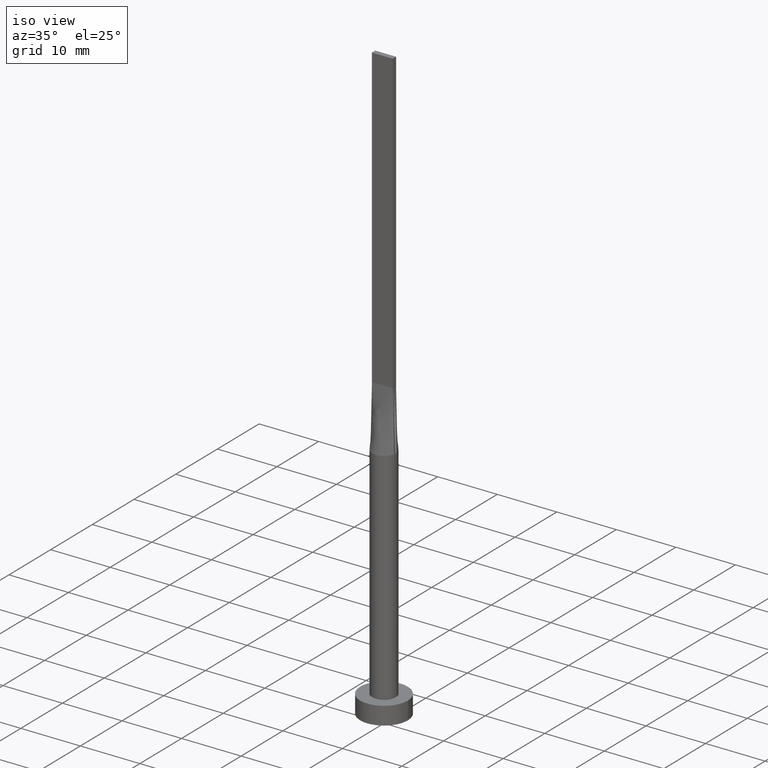
[diagram: clean part render]
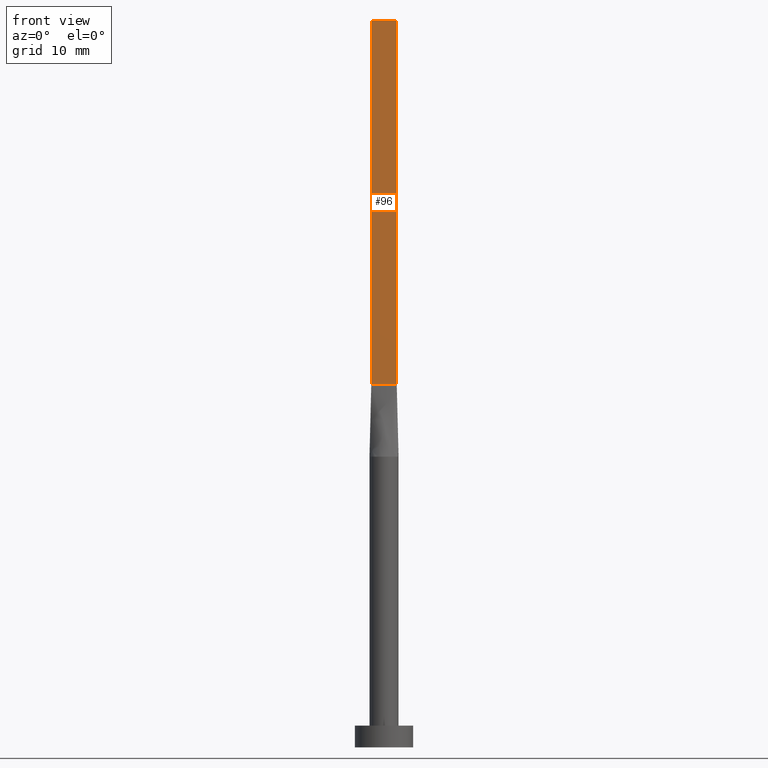
[diagram: tour spotlight — one face highlighted and labeled with its STEP entity id]
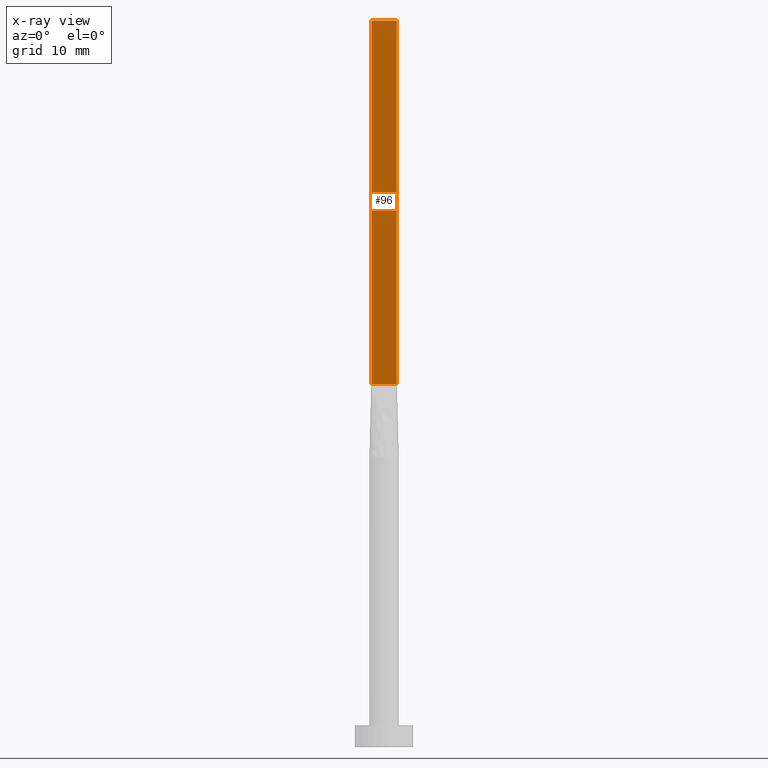
[diagram: x-ray of the same camera — body ghosted, this tour face saturated]
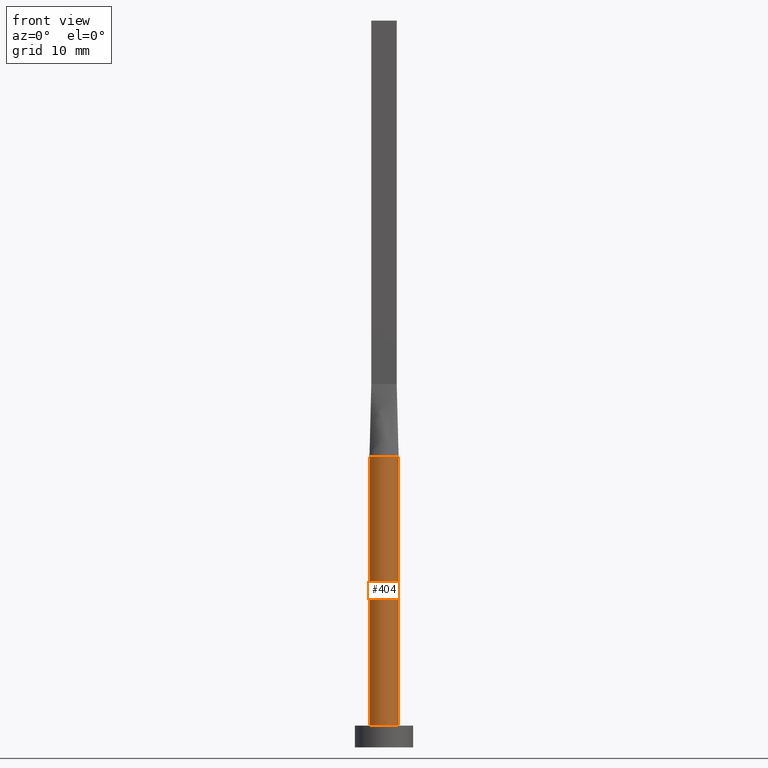
[diagram: tour spotlight — one face highlighted and labeled with its STEP entity id]
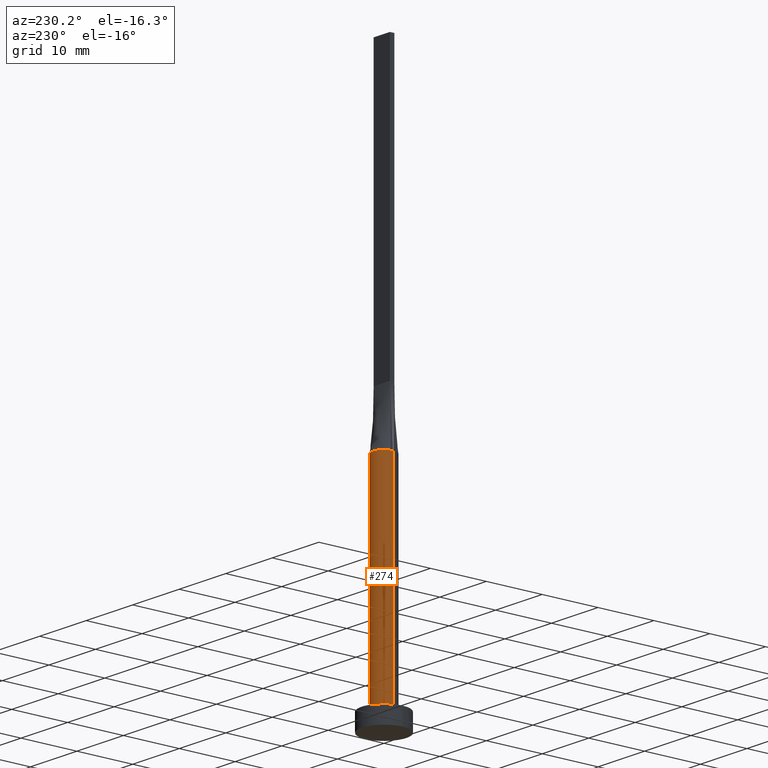
[diagram: tour spotlight — one face highlighted and labeled with its STEP entity id]
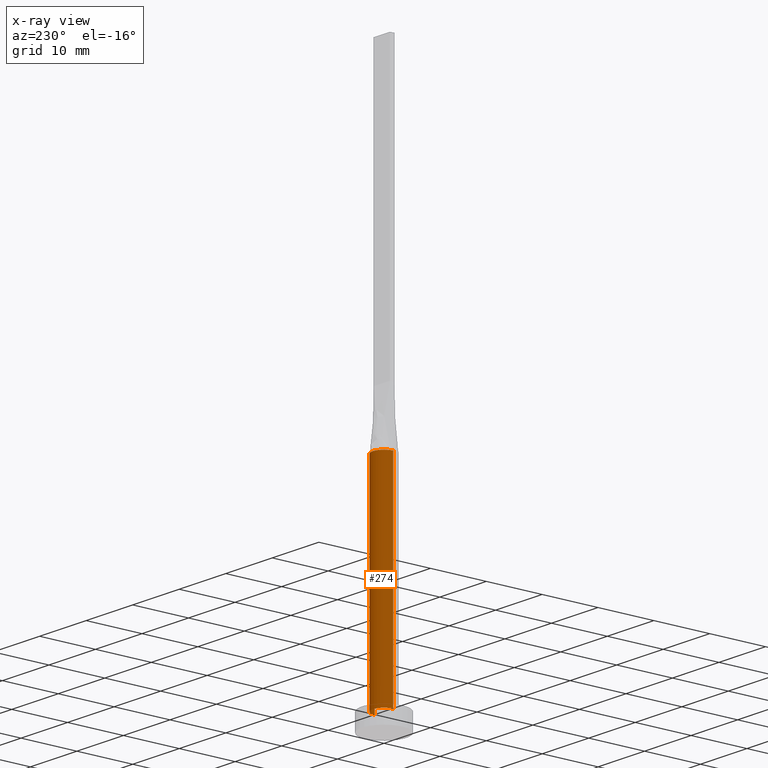
[diagram: x-ray of the same camera — body ghosted, this tour face saturated]
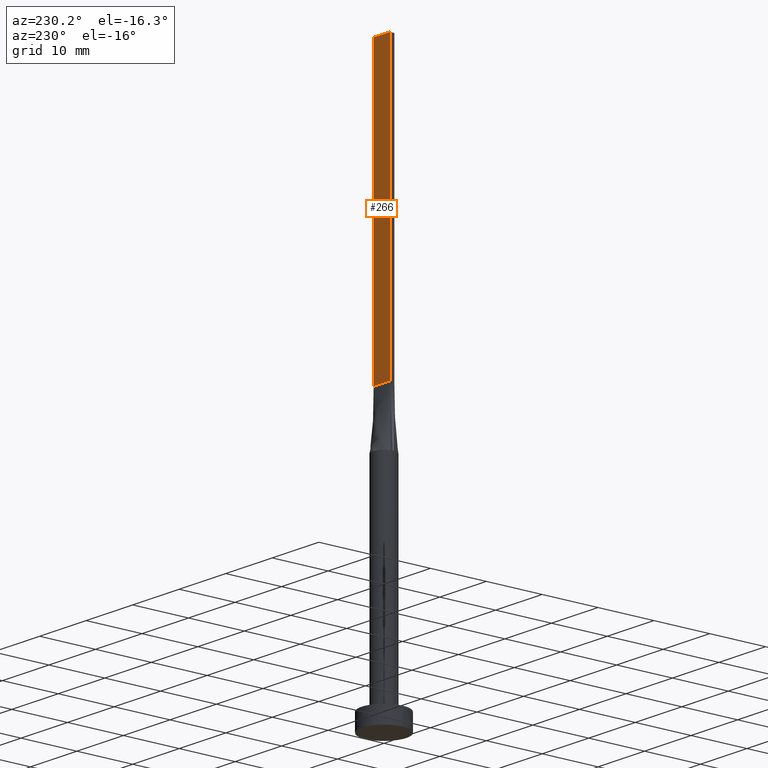
[diagram: tour spotlight — one face highlighted and labeled with its STEP entity id]
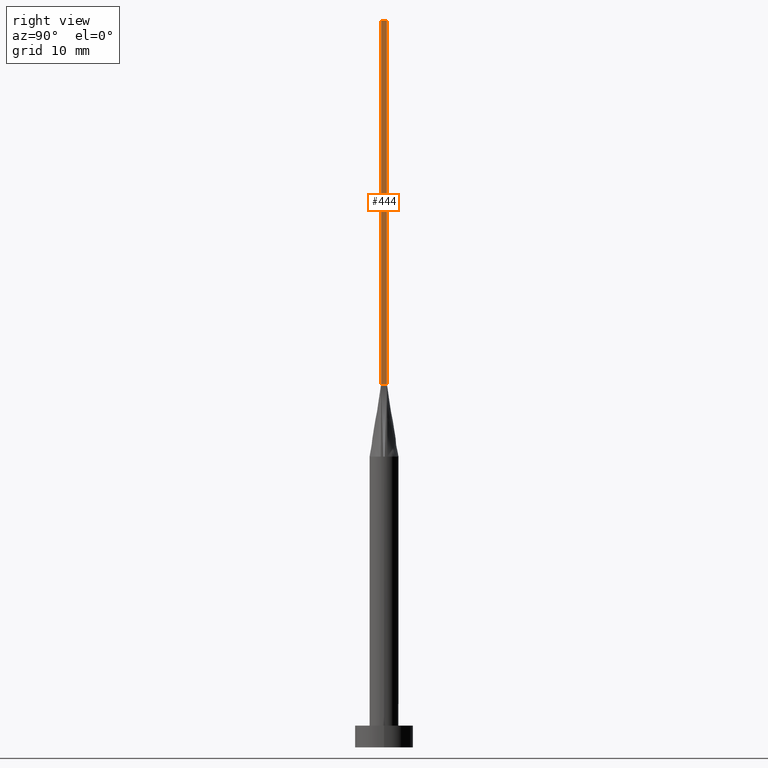
[diagram: tour spotlight — one face highlighted and labeled with its STEP entity id]
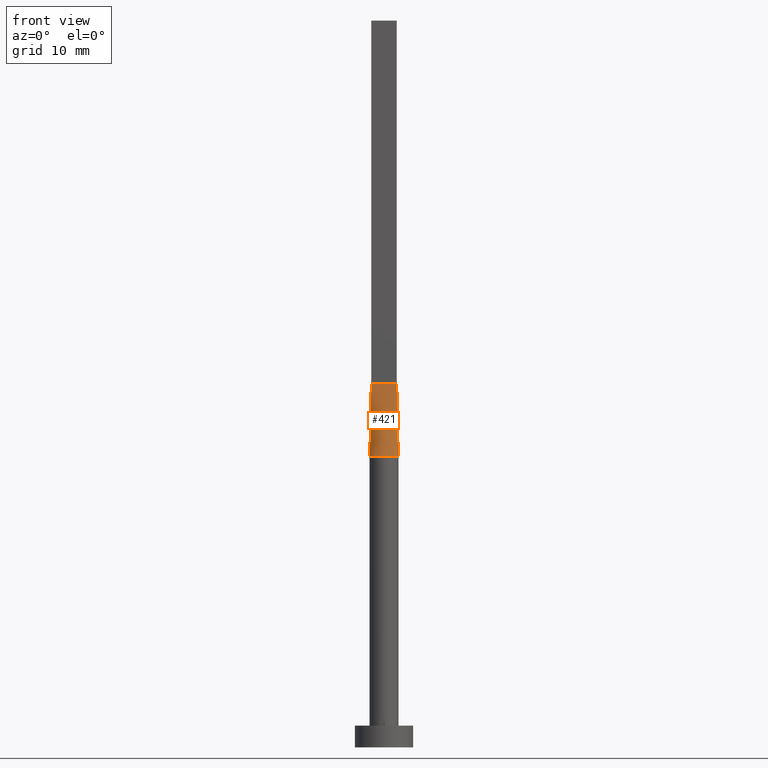
[diagram: tour spotlight — one face highlighted and labeled with its STEP entity id]
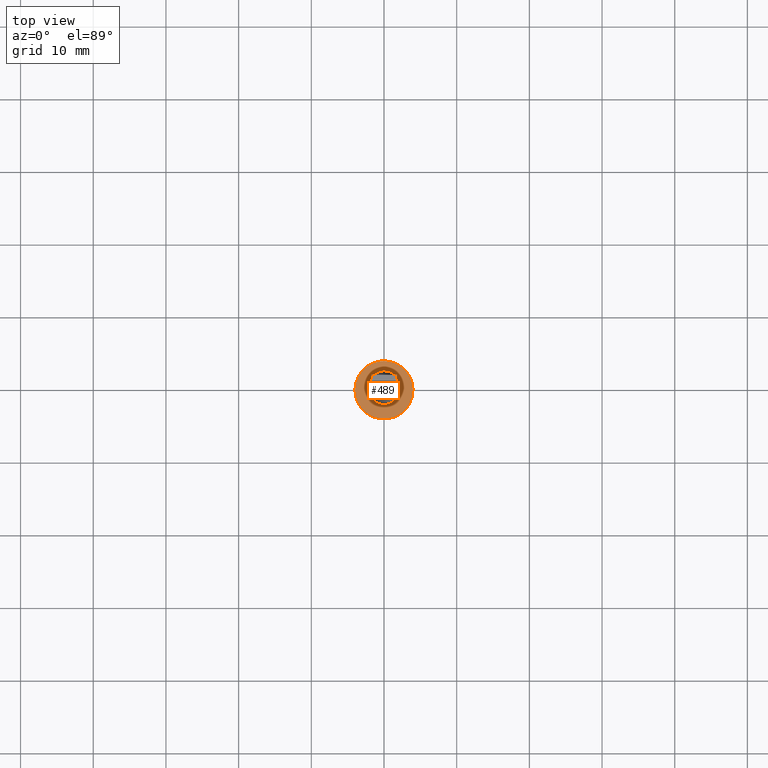
[diagram: tour spotlight — one face highlighted and labeled with its STEP entity id]
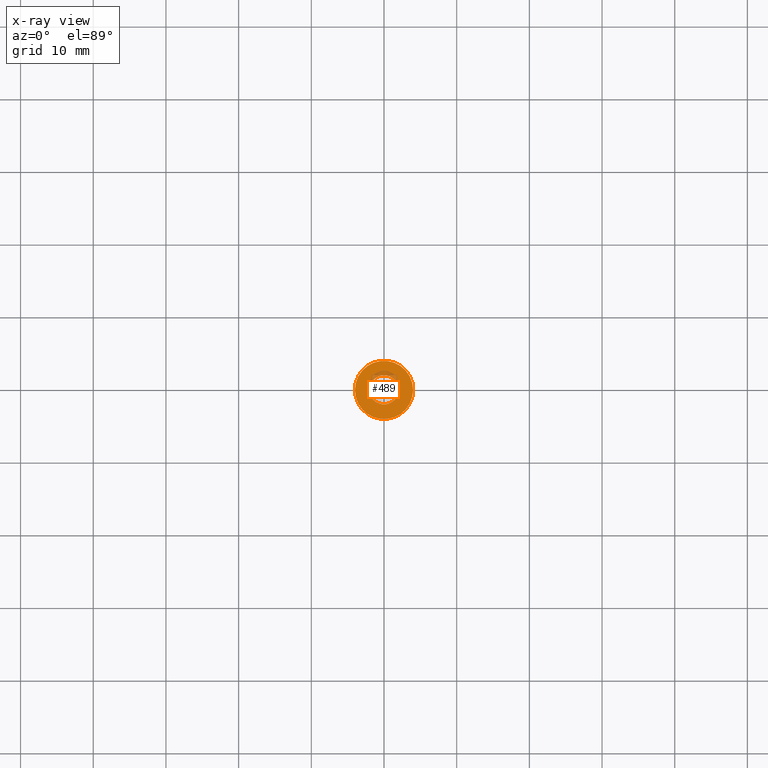
[diagram: x-ray of the same camera — body ghosted, this tour face saturated]
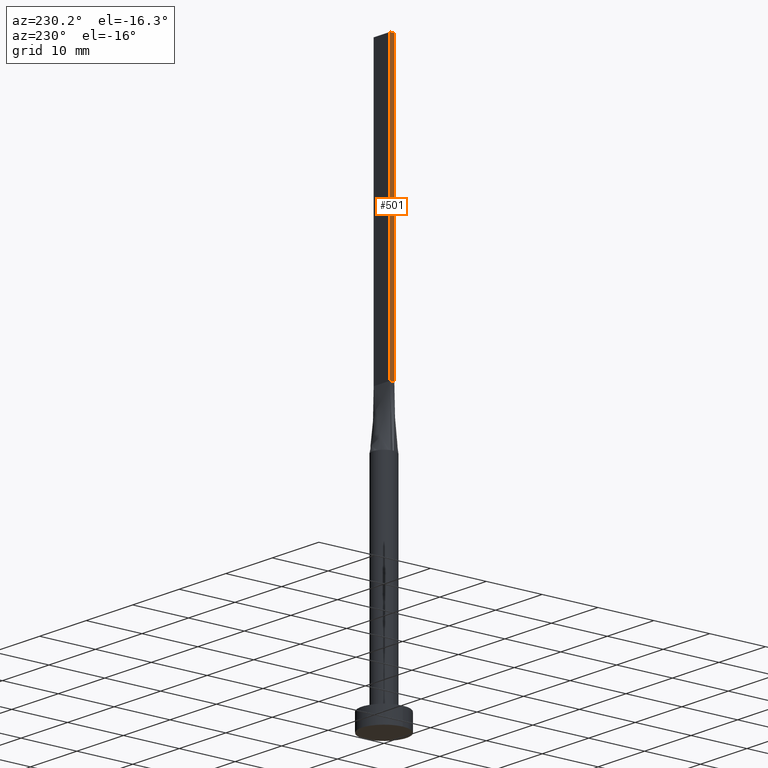
[diagram: tour spotlight — one face highlighted and labeled with its STEP entity id]
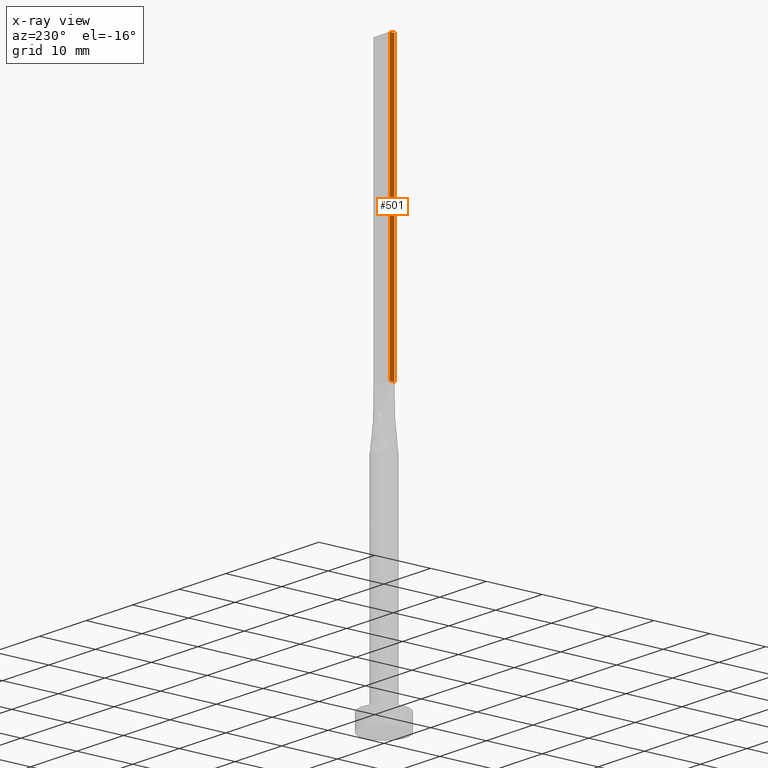
[diagram: x-ray of the same camera — body ghosted, this tour face saturated]
A machine part: a face-by-face anatomy tour. The part has 15 B-rep faces; the first image is the clean iso view, then the 8 largest visible faces are spotlighted one at a time (largest first), each with its STEP entity span.

Face 1 — front view, entity #96. An x-ray twin of the same camera follows (body ghosted, this face saturated) — the face is partly hidden behind the body. In plain terms, the highlighted planar face has unit normal (0, 1, 0).
Definition (entity closure, byte-faithful):
#15 = EDGE_CURVE ( 'NONE', #493, #566, #306, .T. ) ;
#32 = DIRECTION ( 'NONE',  ( -0.000000000000000000, -0.000000000000000000, -1.000000000000000000 ) ) ;
#37 = CARTESIAN_POINT ( 'NONE',  ( -1.750000000000000000, -0.3999999999999996891, 100.0000000000000000 ) ) ;
#48 = VECTOR ( 'NONE', #366, 1000.000000000000000 ) ;
#96 = ADVANCED_FACE ( 'NONE', ( #382 ), #386, .F. ) ;
#114 = LINE ( 'NONE', #159, #191 ) ;
#134 = ORIENTED_EDGE ( 'NONE', *, *, #15, .T. ) ;
#145 = EDGE_CURVE ( 'NONE', #566, #488, #114, .T. ) ;
#155 = CARTESIAN_POINT ( 'NONE',  ( 1.750000000000000000, -0.3999999999999996891, 50.00000000000000000 ) ) ;
#159 = CARTESIAN_POINT ( 'NONE',  ( -1.750000000000000000, -0.3999999999999996891, 50.00000000000000000 ) ) ;
#173 = CARTESIAN_POINT ( 'NONE',  ( -1.750000000000000000, -0.3999999999999996891, 100.0000000000000000 ) ) ;
#191 = VECTOR ( 'NONE', #469, 1000.000000000000000 ) ;
#212 = LINE ( 'NONE', #308, #466 ) ;
#233 = EDGE_LOOP ( 'NONE', ( #429, #435, #262, #134 ) ) ;
#255 = VERTEX_POINT ( 'NONE', #419 ) ;
#262 = ORIENTED_EDGE ( 'NONE', *, *, #350, .F. ) ;
#276 = AXIS2_PLACEMENT_3D ( 'NONE', #173, #380, #345 ) ;
#306 = LINE ( 'NONE', #37, #359 ) ;
#308 = CARTESIAN_POINT ( 'NONE',  ( 1.750000000000000000, -0.3999999999999996891, 100.0000000000000000 ) ) ;
#327 = CARTESIAN_POINT ( 'NONE',  ( -1.750000000000000000, -0.3999999999999996891, 100.0000000000000000 ) ) ;
#345 = DIRECTION ( 'NONE',  ( 0.000000000000000000, -0.000000000000000000, 1.000000000000000000 ) ) ;
#350 = EDGE_CURVE ( 'NONE', #493, #255, #372, .T. ) ;
#359 = VECTOR ( 'NONE', #32, 1000.000000000000000 ) ;
#366 = DIRECTION ( 'NONE',  ( 1.000000000000000000, 0.000000000000000000, 0.000000000000000000 ) ) ;
#372 = LINE ( 'NONE', #327, #48 ) ;
#374 = EDGE_CURVE ( 'NONE', #255, #488, #212, .T. ) ;
#380 = DIRECTION ( 'NONE',  ( 0.000000000000000000, 1.000000000000000000, 0.000000000000000000 ) ) ;
#382 = FACE_OUTER_BOUND ( 'NONE', #233, .T. ) ;
#386 = PLANE ( 'NONE',  #276 ) ;
#408 = CARTESIAN_POINT ( 'NONE',  ( -1.750000000000000000, -0.3999999999999996891, 100.0000000000000000 ) ) ;
#419 = CARTESIAN_POINT ( 'NONE',  ( 1.750000000000000000, -0.3999999999999996891, 100.0000000000000000 ) ) ;
#429 = ORIENTED_EDGE ( 'NONE', *, *, #145, .T. ) ;
#435 = ORIENTED_EDGE ( 'NONE', *, *, #374, .F. ) ;
#466 = VECTOR ( 'NONE', #490, 1000.000000000000000 ) ;
#469 = DIRECTION ( 'NONE',  ( 1.000000000000000000, 0.000000000000000000, 0.000000000000000000 ) ) ;
#488 = VERTEX_POINT ( 'NONE', #155 ) ;
#490 = DIRECTION ( 'NONE',  ( -0.000000000000000000, -0.000000000000000000, -1.000000000000000000 ) ) ;
#493 = VERTEX_POINT ( 'NONE', #408 ) ;
#555 = CARTESIAN_POINT ( 'NONE',  ( -1.750000000000000000, -0.3999999999999996891, 50.00000000000000000 ) ) ;
#566 = VERTEX_POINT ( 'NONE', #555 ) ;

Face 2 — front view, entity #404. In plain terms, the highlighted cylindrical surface (edge-blend (fillet) strip) has radius 2 mm, axis along (-0, -0, -1).
Definition (entity closure, byte-faithful):
#9 = CARTESIAN_POINT ( 'NONE',  ( 1.949907982895221048, -0.4456935569447296186, 40.00000000000000000 ) ) ;
#14 = DIRECTION ( 'NONE',  ( 0.000000000000000000, 0.000000000000000000, 1.000000000000000000 ) ) ;
#18 = DIRECTION ( 'NONE',  ( -0.000000000000000000, -0.000000000000000000, -1.000000000000000000 ) ) ;
#21 = CYLINDRICAL_SURFACE ( 'NONE', #133, 2.000000000000000000 ) ;
#38 = ORIENTED_EDGE ( 'NONE', *, *, #329, .F. ) ;
#56 = CIRCLE ( 'NONE', #277, 2.000000000000000000 ) ;
#58 = CIRCLE ( 'NONE', #122, 2.000000000000000000 ) ;
#93 = VECTOR ( 'NONE', #18, 1000.000000000000000 ) ;
#109 = DIRECTION ( 'NONE',  ( 1.000000000000000000, 0.000000000000000000, 0.000000000000000000 ) ) ;
#121 = ORIENTED_EDGE ( 'NONE', *, *, #338, .T. ) ;
#122 = AXIS2_PLACEMENT_3D ( 'NONE', #253, #259, #339 ) ;
#133 = AXIS2_PLACEMENT_3D ( 'NONE', #552, #161, #405 ) ;
#137 = DIRECTION ( 'NONE',  ( -0.000000000000000000, -0.000000000000000000, -1.000000000000000000 ) ) ;
#141 = CIRCLE ( 'NONE', #288, 2.000000000000000000 ) ;
#150 = LINE ( 'NONE', #203, #93 ) ;
#161 = DIRECTION ( 'NONE',  ( -0.000000000000000000, -0.000000000000000000, -1.000000000000000000 ) ) ;
#180 = EDGE_CURVE ( 'NONE', #270, #454, #150, .T. ) ;
#203 = CARTESIAN_POINT ( 'NONE',  ( -2.000000000000000000, 0.000000000000000000, 40.00000000000000000 ) ) ;
#218 = ORIENTED_EDGE ( 'NONE', *, *, #567, .F. ) ;
#234 = AXIS2_PLACEMENT_3D ( 'NONE', #460, #241, #410 ) ;
#235 = ORIENTED_EDGE ( 'NONE', *, *, #303, .F. ) ;
#241 = DIRECTION ( 'NONE',  ( 0.000000000000000000, 0.000000000000000000, 1.000000000000000000 ) ) ;
#242 = CARTESIAN_POINT ( 'NONE',  ( -2.000000000000000000, 0.000000000000000000, 3.000000000000000000 ) ) ;
#253 = CARTESIAN_POINT ( 'NONE',  ( 0.000000000000000000, 0.000000000000000000, 40.00000000000000000 ) ) ;
#259 = DIRECTION ( 'NONE',  ( 0.000000000000000000, 0.000000000000000000, 1.000000000000000000 ) ) ;
#270 = VERTEX_POINT ( 'NONE', #402 ) ;
#277 = AXIS2_PLACEMENT_3D ( 'NONE', #541, #14, #109 ) ;
#284 = DIRECTION ( 'NONE',  ( 1.000000000000000000, 0.000000000000000000, 0.000000000000000000 ) ) ;
#287 = CARTESIAN_POINT ( 'NONE',  ( 0.000000000000000000, 0.000000000000000000, 40.00000000000000000 ) ) ;
#288 = AXIS2_PLACEMENT_3D ( 'NONE', #287, #465, #284 ) ;
#302 = VERTEX_POINT ( 'NONE', #447 ) ;
#303 = EDGE_CURVE ( 'NONE', #357, #302, #393, .T. ) ;
#319 = ORIENTED_EDGE ( 'NONE', *, *, #180, .T. ) ;
#329 = EDGE_CURVE ( 'NONE', #270, #340, #559, .T. ) ;
#338 = EDGE_CURVE ( 'NONE', #454, #302, #56, .T. ) ;
#339 = DIRECTION ( 'NONE',  ( 1.000000000000000000, -9.769962616701377556E-15, 0.000000000000000000 ) ) ;
#340 = VERTEX_POINT ( 'NONE', #411 ) ;
#353 = CARTESIAN_POINT ( 'NONE',  ( 2.000000000000000000, 2.449293598294706414E-16, 40.00000000000000000 ) ) ;
#357 = VERTEX_POINT ( 'NONE', #507 ) ;
#358 = EDGE_CURVE ( 'NONE', #340, #525, #141, .T. ) ;
#362 = ORIENTED_EDGE ( 'NONE', *, *, #358, .F. ) ;
#391 = EDGE_LOOP ( 'NONE', ( #235, #218, #362, #38, #319, #121 ) ) ;
#393 = LINE ( 'NONE', #353, #491 ) ;
#402 = CARTESIAN_POINT ( 'NONE',  ( -1.999683952654101704, -4.787247324473225831E-16, 40.00000000000000000 ) ) ;
#404 = ADVANCED_FACE ( 'NONE', ( #474 ), #21, .T. ) ;
#405 = DIRECTION ( 'NONE',  ( -1.000000000000000000, 0.000000000000000000, 0.000000000000000000 ) ) ;
#410 = DIRECTION ( 'NONE',  ( 1.000000000000000000, 0.000000000000000000, 0.000000000000000000 ) ) ;
#411 = CARTESIAN_POINT ( 'NONE',  ( -1.949888833174281633, -0.4456892479726881628, 40.00000000000000000 ) ) ;
#447 = CARTESIAN_POINT ( 'NONE',  ( 2.000000000000000000, 2.449293598294706414E-16, 3.000000000000000000 ) ) ;
#454 = VERTEX_POINT ( 'NONE', #242 ) ;
#460 = CARTESIAN_POINT ( 'NONE',  ( 0.000000000000000000, 0.000000000000000000, 40.00000000000000000 ) ) ;
#465 = DIRECTION ( 'NONE',  ( 0.000000000000000000, 0.000000000000000000, 1.000000000000000000 ) ) ;
#474 = FACE_OUTER_BOUND ( 'NONE', #391, .T. ) ;
#491 = VECTOR ( 'NONE', #137, 1000.000000000000000 ) ;
#507 = CARTESIAN_POINT ( 'NONE',  ( 1.999683952654101260, 4.637163118916083254E-16, 40.00000000000000000 ) ) ;
#525 = VERTEX_POINT ( 'NONE', #9 ) ;
#541 = CARTESIAN_POINT ( 'NONE',  ( 0.000000000000000000, 0.000000000000000000, 3.000000000000000000 ) ) ;
#552 = CARTESIAN_POINT ( 'NONE',  ( 0.000000000000000000, 0.000000000000000000, 40.00000000000000000 ) ) ;
#559 = CIRCLE ( 'NONE', #234, 2.000000000000000000 ) ;
#567 = EDGE_CURVE ( 'NONE', #525, #357, #58, .T. ) ;

Face 3 — auxiliary view, entity #274. An x-ray twin of the same camera follows (body ghosted, this face saturated) — the face is partly hidden behind the body. In plain terms, the highlighted cylindrical surface (edge-blend (fillet) strip) has radius 2 mm, axis along (-0, -0, -1).
Definition (entity closure, byte-faithful):
#3 = CYLINDRICAL_SURFACE ( 'NONE', #318, 2.000000000000000000 ) ;
#18 = DIRECTION ( 'NONE',  ( -0.000000000000000000, -0.000000000000000000, -1.000000000000000000 ) ) ;
#35 = DIRECTION ( 'NONE',  ( 0.000000000000000000, 0.000000000000000000, 1.000000000000000000 ) ) ;
#39 = CARTESIAN_POINT ( 'NONE',  ( -1.002818635501954381, 1.749193953526918532, 40.00000000000000711 ) ) ;
#42 = CARTESIAN_POINT ( 'NONE',  ( -1.209404336647713851, 1.609323485403446830, 40.00000000000000000 ) ) ;
#46 = CARTESIAN_POINT ( 'NONE',  ( -1.854458107241758746, 0.7741483657718513101, 40.00000000000000000 ) ) ;
#50 = CARTESIAN_POINT ( 'NONE',  ( 0.000000000000000000, 0.000000000000000000, 40.00000000000000000 ) ) ;
#59 = CARTESIAN_POINT ( 'NONE',  ( -1.949896596863728293, 0.4456908869437610776, 40.00000000000000000 ) ) ;
#62 = AXIS2_PLACEMENT_3D ( 'NONE', #120, #131, #256 ) ;
#84 = CARTESIAN_POINT ( 'NONE',  ( 0.000000000000000000, 0.000000000000000000, 40.00000000000000000 ) ) ;
#85 = CARTESIAN_POINT ( 'NONE',  ( 1.949877516600953875, 0.4456865912299994847, 40.00000000000000000 ) ) ;
#89 = DIRECTION ( 'NONE',  ( -0.000000000000000000, -0.000000000000000000, -1.000000000000000000 ) ) ;
#90 = CARTESIAN_POINT ( 'NONE',  ( 1.854458107241759190, 0.7741483657718509770, 40.00000000000000711 ) ) ;
#93 = VECTOR ( 'NONE', #18, 1000.000000000000000 ) ;
#94 = CARTESIAN_POINT ( 'NONE',  ( 1.002818635501954603, 1.749193953526918088, 40.00000000000000711 ) ) ;
#97 = CARTESIAN_POINT ( 'NONE',  ( 1.949877516600953875, 0.4456865912299994847, 40.00000000000000000 ) ) ;
#102 = CIRCLE ( 'NONE', #62, 2.000000000000000000 ) ;
#118 = EDGE_CURVE ( 'NONE', #302, #454, #132, .T. ) ;
#120 = CARTESIAN_POINT ( 'NONE',  ( 0.000000000000000000, 0.000000000000000000, 40.00000000000000000 ) ) ;
#124 = ORIENTED_EDGE ( 'NONE', *, *, #303, .T. ) ;
#128 = ORIENTED_EDGE ( 'NONE', *, *, #118, .T. ) ;
#130 = EDGE_CURVE ( 'NONE', #346, #270, #102, .T. ) ;
#131 = DIRECTION ( 'NONE',  ( 0.000000000000000000, 0.000000000000000000, 1.000000000000000000 ) ) ;
#132 = CIRCLE ( 'NONE', #452, 2.000000000000000000 ) ;
#137 = DIRECTION ( 'NONE',  ( -0.000000000000000000, -0.000000000000000000, -1.000000000000000000 ) ) ;
#150 = LINE ( 'NONE', #203, #93 ) ;
#163 = CARTESIAN_POINT ( 'NONE',  ( 0.000000000000000000, 0.000000000000000000, 3.000000000000000000 ) ) ;
#179 = CARTESIAN_POINT ( 'NONE',  ( -1.669156890509896796, 1.119033439449084399, 40.00000000000000000 ) ) ;
#180 = EDGE_CURVE ( 'NONE', #270, #454, #150, .T. ) ;
#185 = CIRCLE ( 'NONE', #331, 2.000000000000000000 ) ;
#203 = CARTESIAN_POINT ( 'NONE',  ( -2.000000000000000000, 0.000000000000000000, 40.00000000000000000 ) ) ;
#219 = DIRECTION ( 'NONE',  ( 1.000000000000000000, 0.000000000000000000, 0.000000000000000000 ) ) ;
#223 = CARTESIAN_POINT ( 'NONE',  ( -1.542259513637947999, 1.293837904363075442, 40.00000000000000000 ) ) ;
#224 = ORIENTED_EDGE ( 'NONE', *, *, #130, .F. ) ;
#230 = CARTESIAN_POINT ( 'NONE',  ( -1.913513237607142647, 0.6040411209768712375, 40.00000000000000000 ) ) ;
#231 = EDGE_CURVE ( 'NONE', #299, #346, #464, .T. ) ;
#236 = DIRECTION ( 'NONE',  ( 0.000000000000000000, 0.000000000000000000, 1.000000000000000000 ) ) ;
#242 = CARTESIAN_POINT ( 'NONE',  ( -2.000000000000000000, 0.000000000000000000, 3.000000000000000000 ) ) ;
#256 = DIRECTION ( 'NONE',  ( 1.000000000000000000, 0.000000000000000000, 0.000000000000000000 ) ) ;
#264 = DIRECTION ( 'NONE',  ( -1.000000000000000000, 0.000000000000000000, 0.000000000000000000 ) ) ;
#268 = CARTESIAN_POINT ( 'NONE',  ( 0.2657394870669761988, 1.999999999999999556, 39.99999999999999289 ) ) ;
#270 = VERTEX_POINT ( 'NONE', #402 ) ;
#274 = ADVANCED_FACE ( 'NONE', ( #502 ), #3, .T. ) ;
#275 = CARTESIAN_POINT ( 'NONE',  ( 1.209404336647714073, 1.609323485403446830, 39.99999999999998579 ) ) ;
#299 = VERTEX_POINT ( 'NONE', #97 ) ;
#302 = VERTEX_POINT ( 'NONE', #447 ) ;
#303 = EDGE_CURVE ( 'NONE', #357, #302, #393, .T. ) ;
#318 = AXIS2_PLACEMENT_3D ( 'NONE', #84, #89, #264 ) ;
#331 = AXIS2_PLACEMENT_3D ( 'NONE', #50, #236, #373 ) ;
#346 = VERTEX_POINT ( 'NONE', #59 ) ;
#353 = CARTESIAN_POINT ( 'NONE',  ( 2.000000000000000000, 2.449293598294706414E-16, 40.00000000000000000 ) ) ;
#357 = VERTEX_POINT ( 'NONE', #507 ) ;
#360 = CARTESIAN_POINT ( 'NONE',  ( -0.5307032259479420588, 1.945168061822314609, 40.00000000000001421 ) ) ;
#373 = DIRECTION ( 'NONE',  ( 1.000000000000000000, 0.000000000000000000, 0.000000000000000000 ) ) ;
#393 = LINE ( 'NONE', #353, #491 ) ;
#394 = ORIENTED_EDGE ( 'NONE', *, *, #180, .F. ) ;
#398 = CARTESIAN_POINT ( 'NONE',  ( 1.669156890509896352, 1.119033439449084177, 40.00000000000000000 ) ) ;
#402 = CARTESIAN_POINT ( 'NONE',  ( -1.999683952654101704, -4.787247324473225831E-16, 40.00000000000000000 ) ) ;
#439 = CARTESIAN_POINT ( 'NONE',  ( 0.5307032259479425029, 1.945168061822314165, 40.00000000000000711 ) ) ;
#441 = CARTESIAN_POINT ( 'NONE',  ( -0.2657394870669756437, 1.999999999999999556, 39.99999999999999289 ) ) ;
#447 = CARTESIAN_POINT ( 'NONE',  ( 2.000000000000000000, 2.449293598294706414E-16, 3.000000000000000000 ) ) ;
#452 = AXIS2_PLACEMENT_3D ( 'NONE', #163, #35, #219 ) ;
#454 = VERTEX_POINT ( 'NONE', #242 ) ;
#464 = B_SPLINE_CURVE_WITH_KNOTS ( 'NONE', 3,
 ( #85, #495, #90, #398, #578, #275, #94, #439, #268, #441, #360, #39, #42, #223, #179, #46, #230, #533 ),
 .UNSPECIFIED., .F., .F.,
 ( 4, 2, 2, 2, 2, 2, 2, 2, 4 ),
 ( 0.000000000000000000, 0.1250000000000000000, 0.2500000000000000000, 0.3750000000000000000, 0.5000000000000000000, 0.6250000000000000000, 0.7500000000000000000, 0.8750000000000000000, 1.000000000000000000 ),
 .UNSPECIFIED. ) ;
#473 = EDGE_CURVE ( 'NONE', #357, #299, #185, .T. ) ;
#491 = VECTOR ( 'NONE', #137, 1000.000000000000000 ) ;
#495 = CARTESIAN_POINT ( 'NONE',  ( 1.913513237607142647, 0.6040411209768705714, 39.99999999999999289 ) ) ;
#500 = ORIENTED_EDGE ( 'NONE', *, *, #473, .F. ) ;
#502 = FACE_OUTER_BOUND ( 'NONE', #557, .T. ) ;
#507 = CARTESIAN_POINT ( 'NONE',  ( 1.999683952654101260, 4.637163118916083254E-16, 40.00000000000000000 ) ) ;
#533 = CARTESIAN_POINT ( 'NONE',  ( -1.949896596863728293, 0.4456908869437610776, 40.00000000000000000 ) ) ;
#557 = EDGE_LOOP ( 'NONE', ( #500, #124, #128, #394, #224, #577 ) ) ;
#577 = ORIENTED_EDGE ( 'NONE', *, *, #231, .F. ) ;
#578 = CARTESIAN_POINT ( 'NONE',  ( 1.542259513637948443, 1.293837904363074998, 40.00000000000000000 ) ) ;

Face 4 — auxiliary view, entity #266. In plain terms, the highlighted planar face has unit normal (0, -1, 0).
Definition (entity closure, byte-faithful):
#11 = CARTESIAN_POINT ( 'NONE',  ( -1.749999999999999778, 0.4000000000000003553, 50.00000000000000000 ) ) ;
#64 = DIRECTION ( 'NONE',  ( 0.000000000000000000, -0.000000000000000000, -1.000000000000000000 ) ) ;
#105 = DIRECTION ( 'NONE',  ( -0.000000000000000000, -0.000000000000000000, -1.000000000000000000 ) ) ;
#110 = LINE ( 'NONE', #279, #498 ) ;
#116 = CARTESIAN_POINT ( 'NONE',  ( 1.749999999999999778, 0.4000000000000003553, 100.0000000000000000 ) ) ;
#117 = DIRECTION ( 'NONE',  ( -1.000000000000000000, 0.000000000000000000, 0.000000000000000000 ) ) ;
#156 = AXIS2_PLACEMENT_3D ( 'NONE', #116, #476, #64 ) ;
#168 = VECTOR ( 'NONE', #117, 1000.000000000000000 ) ;
#169 = VECTOR ( 'NONE', #105, 1000.000000000000000 ) ;
#186 = EDGE_CURVE ( 'NONE', #344, #443, #379, .T. ) ;
#190 = LINE ( 'NONE', #512, #169 ) ;
#198 = EDGE_CURVE ( 'NONE', #317, #575, #409, .T. ) ;
#201 = CARTESIAN_POINT ( 'NONE',  ( 1.749999999999999778, 0.4000000000000003553, 100.0000000000000000 ) ) ;
#211 = ORIENTED_EDGE ( 'NONE', *, *, #526, .F. ) ;
#229 = ORIENTED_EDGE ( 'NONE', *, *, #514, .T. ) ;
#244 = DIRECTION ( 'NONE',  ( -1.000000000000000000, -0.000000000000000000, -0.000000000000000000 ) ) ;
#245 = CARTESIAN_POINT ( 'NONE',  ( 1.749999999999999778, 0.4000000000000003553, 50.00000000000000000 ) ) ;
#250 = CARTESIAN_POINT ( 'NONE',  ( -1.749999999999999778, 0.4000000000000003553, 50.00000000000000000 ) ) ;
#266 = ADVANCED_FACE ( 'NONE', ( #347 ), #516, .F. ) ;
#279 = CARTESIAN_POINT ( 'NONE',  ( 1.749999999999999778, 0.4000000000000003553, 100.0000000000000000 ) ) ;
#297 = ORIENTED_EDGE ( 'NONE', *, *, #198, .T. ) ;
#317 = VERTEX_POINT ( 'NONE', #245 ) ;
#332 = DIRECTION ( 'NONE',  ( -0.000000000000000000, -0.000000000000000000, -1.000000000000000000 ) ) ;
#341 = VECTOR ( 'NONE', #244, 1000.000000000000000 ) ;
#344 = VERTEX_POINT ( 'NONE', #201 ) ;
#347 = FACE_OUTER_BOUND ( 'NONE', #428, .T. ) ;
#351 = ORIENTED_EDGE ( 'NONE', *, *, #186, .F. ) ;
#379 = LINE ( 'NONE', #550, #168 ) ;
#409 = LINE ( 'NONE', #11, #341 ) ;
#428 = EDGE_LOOP ( 'NONE', ( #297, #211, #351, #229 ) ) ;
#443 = VERTEX_POINT ( 'NONE', #462 ) ;
#462 = CARTESIAN_POINT ( 'NONE',  ( -1.749999999999999778, 0.4000000000000003553, 100.0000000000000000 ) ) ;
#476 = DIRECTION ( 'NONE',  ( 0.000000000000000000, -1.000000000000000000, 0.000000000000000000 ) ) ;
#498 = VECTOR ( 'NONE', #332, 1000.000000000000000 ) ;
#512 = CARTESIAN_POINT ( 'NONE',  ( -1.749999999999999778, 0.4000000000000003553, 100.0000000000000000 ) ) ;
#514 = EDGE_CURVE ( 'NONE', #344, #317, #110, .T. ) ;
#516 = PLANE ( 'NONE',  #156 ) ;
#526 = EDGE_CURVE ( 'NONE', #443, #575, #190, .T. ) ;
#550 = CARTESIAN_POINT ( 'NONE',  ( 1.749999999999999778, 0.4000000000000003553, 100.0000000000000000 ) ) ;
#575 = VERTEX_POINT ( 'NONE', #250 ) ;

Face 5 — right view, entity #444. In plain terms, the highlighted planar face has unit normal (-1, -0, 0).
Definition (entity closure, byte-faithful):
#72 = DIRECTION ( 'NONE',  ( -2.710505431213761085E-16, 1.000000000000000000, -0.000000000000000000 ) ) ;
#87 = ORIENTED_EDGE ( 'NONE', *, *, #103, .F. ) ;
#103 = EDGE_CURVE ( 'NONE', #255, #344, #554, .T. ) ;
#110 = LINE ( 'NONE', #279, #498 ) ;
#119 = ORIENTED_EDGE ( 'NONE', *, *, #374, .T. ) ;
#146 = CARTESIAN_POINT ( 'NONE',  ( 1.750000000000000000, -0.3999999999999996891, 100.0000000000000000 ) ) ;
#154 = VECTOR ( 'NONE', #261, 1000.000000000000000 ) ;
#155 = CARTESIAN_POINT ( 'NONE',  ( 1.750000000000000000, -0.3999999999999996891, 50.00000000000000000 ) ) ;
#157 = VECTOR ( 'NONE', #72, 1000.000000000000000 ) ;
#193 = DIRECTION ( 'NONE',  ( -1.000000000000000000, -2.710505431213761085E-16, 0.000000000000000000 ) ) ;
#201 = CARTESIAN_POINT ( 'NONE',  ( 1.749999999999999778, 0.4000000000000003553, 100.0000000000000000 ) ) ;
#212 = LINE ( 'NONE', #308, #466 ) ;
#245 = CARTESIAN_POINT ( 'NONE',  ( 1.749999999999999778, 0.4000000000000003553, 50.00000000000000000 ) ) ;
#255 = VERTEX_POINT ( 'NONE', #419 ) ;
#261 = DIRECTION ( 'NONE',  ( -2.710505431213761085E-16, 1.000000000000000000, 0.000000000000000000 ) ) ;
#279 = CARTESIAN_POINT ( 'NONE',  ( 1.749999999999999778, 0.4000000000000003553, 100.0000000000000000 ) ) ;
#308 = CARTESIAN_POINT ( 'NONE',  ( 1.750000000000000000, -0.3999999999999996891, 100.0000000000000000 ) ) ;
#313 = EDGE_LOOP ( 'NONE', ( #522, #486, #87, #119 ) ) ;
#317 = VERTEX_POINT ( 'NONE', #245 ) ;
#332 = DIRECTION ( 'NONE',  ( -0.000000000000000000, -0.000000000000000000, -1.000000000000000000 ) ) ;
#344 = VERTEX_POINT ( 'NONE', #201 ) ;
#349 = CARTESIAN_POINT ( 'NONE',  ( 1.750000000000000000, -0.3999999999999996891, 100.0000000000000000 ) ) ;
#374 = EDGE_CURVE ( 'NONE', #255, #488, #212, .T. ) ;
#384 = LINE ( 'NONE', #427, #157 ) ;
#413 = DIRECTION ( 'NONE',  ( 2.710505431213761085E-16, -1.000000000000000000, 0.000000000000000000 ) ) ;
#417 = PLANE ( 'NONE',  #434 ) ;
#419 = CARTESIAN_POINT ( 'NONE',  ( 1.750000000000000000, -0.3999999999999996891, 100.0000000000000000 ) ) ;
#427 = CARTESIAN_POINT ( 'NONE',  ( 1.749999999999999778, 0.4000000000000003553, 50.00000000000000000 ) ) ;
#434 = AXIS2_PLACEMENT_3D ( 'NONE', #146, #193, #413 ) ;
#444 = ADVANCED_FACE ( 'NONE', ( #545 ), #417, .F. ) ;
#466 = VECTOR ( 'NONE', #490, 1000.000000000000000 ) ;
#486 = ORIENTED_EDGE ( 'NONE', *, *, #514, .F. ) ;
#488 = VERTEX_POINT ( 'NONE', #155 ) ;
#490 = DIRECTION ( 'NONE',  ( -0.000000000000000000, -0.000000000000000000, -1.000000000000000000 ) ) ;
#498 = VECTOR ( 'NONE', #332, 1000.000000000000000 ) ;
#514 = EDGE_CURVE ( 'NONE', #344, #317, #110, .T. ) ;
#522 = ORIENTED_EDGE ( 'NONE', *, *, #580, .T. ) ;
#545 = FACE_OUTER_BOUND ( 'NONE', #313, .T. ) ;
#554 = LINE ( 'NONE', #349, #154 ) ;
#580 = EDGE_CURVE ( 'NONE', #488, #317, #384, .T. ) ;

Face 6 — front view, entity #421. In plain terms, the highlighted face is a freeform B-spline surface patch.
Definition (entity closure, byte-faithful):
#1 = VECTOR ( 'NONE', #144, 1000.000000000000114 ) ;
#4 = CARTESIAN_POINT ( 'NONE',  ( -1.750000000000000000, -0.3999999999999996891, 50.00000000000000000 ) ) ;
#9 = CARTESIAN_POINT ( 'NONE',  ( 1.949907982895221048, -0.4456935569447296186, 40.00000000000000000 ) ) ;
#12 = CARTESIAN_POINT ( 'NONE',  ( 0.7291666666666676289, -0.3999999999999997446, 50.00000000000000000 ) ) ;
#16 = CARTESIAN_POINT ( 'NONE',  ( 0.2916666666666679064, -0.3999999999999997446, 50.00000000000000000 ) ) ;
#34 = EDGE_LOOP ( 'NONE', ( #355, #497, #78, #47 ) ) ;
#47 = ORIENTED_EDGE ( 'NONE', *, *, #240, .T. ) ;
#52 = CARTESIAN_POINT ( 'NONE',  ( 0.1458333333333345638, -0.3999999999999997446, 50.00000000000000711 ) ) ;
#55 = CARTESIAN_POINT ( 'NONE',  ( 1.458333333333333703, -0.3999999999999997446, 50.00000000000000000 ) ) ;
#60 = CARTESIAN_POINT ( 'NONE',  ( 1.166666666666667407, -0.3999999999999997446, 50.00000000000000000 ) ) ;
#68 = DIRECTION ( 'NONE',  ( -0.01996751149463110026, 0.004564002627344216668, 0.9997902121768992290 ) ) ;
#70 = CARTESIAN_POINT ( 'NONE',  ( -1.604166666666666519, -0.3999999999999996891, 50.00000000000000000 ) ) ;
#78 = ORIENTED_EDGE ( 'NONE', *, *, #145, .F. ) ;
#98 = CARTESIAN_POINT ( 'NONE',  ( -1.849858506571867345, -0.4228248015021409678, 45.00000000000000000 ) ) ;
#107 = CARTESIAN_POINT ( 'NONE',  ( -1.002818635501955047, -1.749193953526917866, 40.00000000000000711 ) ) ;
#108 = CARTESIAN_POINT ( 'NONE',  ( 1.002818635501955047, -1.749193953526917866, 40.00000000000000711 ) ) ;
#111 = EDGE_CURVE ( 'NONE', #525, #488, #527, .T. ) ;
#114 = LINE ( 'NONE', #159, #191 ) ;
#141 = CIRCLE ( 'NONE', #288, 2.000000000000000000 ) ;
#144 = DIRECTION ( 'NONE',  ( -0.01996751149463110026, -0.004564002627344275649, -0.9997902121768992290 ) ) ;
#145 = EDGE_CURVE ( 'NONE', #566, #488, #114, .T. ) ;
#148 = CARTESIAN_POINT ( 'NONE',  ( -1.209404336647714739, -1.609323485403446607, 39.99999999999998579 ) ) ;
#149 = CARTESIAN_POINT ( 'NONE',  ( 1.209404336647714517, -1.609323485403446385, 40.00000000000000000 ) ) ;
#155 = CARTESIAN_POINT ( 'NONE',  ( 1.750000000000000000, -0.3999999999999996891, 50.00000000000000000 ) ) ;
#159 = CARTESIAN_POINT ( 'NONE',  ( -1.750000000000000000, -0.3999999999999996891, 50.00000000000000000 ) ) ;
#170 = CARTESIAN_POINT ( 'NONE',  ( -1.669156890509896796, -1.119033439449083733, 40.00000000000000000 ) ) ;
#187 = CARTESIAN_POINT ( 'NONE',  ( 0.5833333333333344806, -0.3999999999999997446, 50.00000000000000000 ) ) ;
#191 = VECTOR ( 'NONE', #469, 1000.000000000000000 ) ;
#209 = CARTESIAN_POINT ( 'NONE',  ( -1.542259513637948887, -1.293837904363074331, 40.00000000000000000 ) ) ;
#240 = EDGE_CURVE ( 'NONE', #566, #340, #446, .T. ) ;
#247 = CARTESIAN_POINT ( 'NONE',  ( 1.750000000000000000, -0.3999999999999996891, 50.00000000000000000 ) ) ;
#265 = B_SPLINE_SURFACE_WITH_KNOTS ( 'NONE', 3, 1, ( 
 ( #449, #4 ),
 ( #422, #70 ),
 ( #481, #426 ),
 ( #170, #295 ),
 ( #209, #477 ),
 ( #148, #281 ),
 ( #107, #328 ),
 ( #370, #406 ),
 ( #536, #505 ),
 ( #470, #52 ),
 ( #540, #16 ),
 ( #108, #187 ),
 ( #149, #12 ),
 ( #363, #289 ),
 ( #511, #60 ),
 ( #285, #55 ),
 ( #468, #291 ),
 ( #503, #247 ) ),
 .UNSPECIFIED., .F., .F., .F.,
 ( 4, 2, 2, 2, 2, 2, 2, 2, 4 ),
 ( 2, 2 ),
 ( 0.000000000000000000, 0.1250000000000000000, 0.2500000000000000000, 0.3750000000000000000, 0.5000000000000000000, 0.6250000000000000000, 0.7500000000000000000, 0.8750000000000000000, 1.000000000000000000 ),
 ( 0.000000000000000000, 1.000000000000000000 ),
 .UNSPECIFIED. ) ;
#272 = FACE_OUTER_BOUND ( 'NONE', #34, .T. ) ;
#281 = CARTESIAN_POINT ( 'NONE',  ( -0.7291666666666657415, -0.3999999999999997446, 50.00000000000000711 ) ) ;
#284 = DIRECTION ( 'NONE',  ( 1.000000000000000000, 0.000000000000000000, 0.000000000000000000 ) ) ;
#285 = CARTESIAN_POINT ( 'NONE',  ( 1.854458107241758746, -0.7741483657718503109, 40.00000000000000000 ) ) ;
#287 = CARTESIAN_POINT ( 'NONE',  ( 0.000000000000000000, 0.000000000000000000, 40.00000000000000000 ) ) ;
#288 = AXIS2_PLACEMENT_3D ( 'NONE', #287, #465, #284 ) ;
#289 = CARTESIAN_POINT ( 'NONE',  ( 1.020833333333334147, -0.3999999999999997446, 50.00000000000000000 ) ) ;
#291 = CARTESIAN_POINT ( 'NONE',  ( 1.604166666666666963, -0.3999999999999997446, 50.00000000000000000 ) ) ;
#295 = CARTESIAN_POINT ( 'NONE',  ( -1.166666666666665853, -0.3999999999999996891, 50.00000000000000000 ) ) ;
#328 = CARTESIAN_POINT ( 'NONE',  ( -0.5833333333333322601, -0.3999999999999997446, 50.00000000000000711 ) ) ;
#340 = VERTEX_POINT ( 'NONE', #411 ) ;
#355 = ORIENTED_EDGE ( 'NONE', *, *, #358, .T. ) ;
#358 = EDGE_CURVE ( 'NONE', #340, #525, #141, .T. ) ;
#363 = CARTESIAN_POINT ( 'NONE',  ( 1.542259513637949109, -1.293837904363074331, 40.00000000000000000 ) ) ;
#370 = CARTESIAN_POINT ( 'NONE',  ( -0.5307032259479425029, -1.945168061822315275, 40.00000000000000711 ) ) ;
#375 = VECTOR ( 'NONE', #68, 1000.000000000000114 ) ;
#406 = CARTESIAN_POINT ( 'NONE',  ( -0.2916666666666655194, -0.3999999999999997446, 50.00000000000000711 ) ) ;
#411 = CARTESIAN_POINT ( 'NONE',  ( -1.949888833174281633, -0.4456892479726881628, 40.00000000000000000 ) ) ;
#421 = ADVANCED_FACE ( 'NONE', ( #272 ), #265, .T. ) ;
#422 = CARTESIAN_POINT ( 'NONE',  ( -1.913513237607142425, -0.6040411209768705714, 39.99999999999999289 ) ) ;
#426 = CARTESIAN_POINT ( 'NONE',  ( -1.458333333333332815, -0.3999999999999996891, 50.00000000000000000 ) ) ;
#433 = CARTESIAN_POINT ( 'NONE',  ( 1.849858506571867345, -0.4228248015021406347, 45.00000000000000000 ) ) ;
#446 = LINE ( 'NONE', #98, #1 ) ;
#449 = CARTESIAN_POINT ( 'NONE',  ( -1.949717013143734690, -0.4456496030042821355, 40.00000000000000000 ) ) ;
#465 = DIRECTION ( 'NONE',  ( 0.000000000000000000, 0.000000000000000000, 1.000000000000000000 ) ) ;
#468 = CARTESIAN_POINT ( 'NONE',  ( 1.913513237607143314, -0.6040411209768704603, 40.00000000000000000 ) ) ;
#469 = DIRECTION ( 'NONE',  ( 1.000000000000000000, 0.000000000000000000, 0.000000000000000000 ) ) ;
#470 = CARTESIAN_POINT ( 'NONE',  ( 0.2657394870669759768, -2.000000000000000444, 40.00000000000000711 ) ) ;
#477 = CARTESIAN_POINT ( 'NONE',  ( -1.020833333333332593, -0.3999999999999997446, 50.00000000000000000 ) ) ;
#481 = CARTESIAN_POINT ( 'NONE',  ( -1.854458107241759190, -0.7741483657718508660, 40.00000000000000711 ) ) ;
#488 = VERTEX_POINT ( 'NONE', #155 ) ;
#497 = ORIENTED_EDGE ( 'NONE', *, *, #111, .T. ) ;
#503 = CARTESIAN_POINT ( 'NONE',  ( 1.949717013143734690, -0.4456496030042815248, 40.00000000000000000 ) ) ;
#505 = CARTESIAN_POINT ( 'NONE',  ( -0.1458333333333321213, -0.3999999999999997446, 50.00000000000000711 ) ) ;
#511 = CARTESIAN_POINT ( 'NONE',  ( 1.669156890509896574, -1.119033439449083733, 40.00000000000000000 ) ) ;
#525 = VERTEX_POINT ( 'NONE', #9 ) ;
#527 = LINE ( 'NONE', #433, #375 ) ;
#536 = CARTESIAN_POINT ( 'NONE',  ( -0.2657394870669760878, -2.000000000000000000, 40.00000000000000711 ) ) ;
#540 = CARTESIAN_POINT ( 'NONE',  ( 0.5307032259479425029, -1.945168061822314831, 40.00000000000000711 ) ) ;
#555 = CARTESIAN_POINT ( 'NONE',  ( -1.750000000000000000, -0.3999999999999996891, 50.00000000000000000 ) ) ;
#566 = VERTEX_POINT ( 'NONE', #555 ) ;

Face 7 — top view, entity #489. An x-ray twin of the same camera follows (body ghosted, this face saturated) — the face is partly hidden behind the body. In plain terms, the highlighted planar face has unit normal (0, 0, 1).
Definition (entity closure, byte-faithful):
#10 = AXIS2_PLACEMENT_3D ( 'NONE', #153, #330, #568 ) ;
#14 = DIRECTION ( 'NONE',  ( 0.000000000000000000, 0.000000000000000000, 1.000000000000000000 ) ) ;
#35 = DIRECTION ( 'NONE',  ( 0.000000000000000000, 0.000000000000000000, 1.000000000000000000 ) ) ;
#36 = EDGE_CURVE ( 'NONE', #79, #67, #258, .T. ) ;
#56 = CIRCLE ( 'NONE', #277, 2.000000000000000000 ) ;
#67 = VERTEX_POINT ( 'NONE', #392 ) ;
#79 = VERTEX_POINT ( 'NONE', #336 ) ;
#82 = CARTESIAN_POINT ( 'NONE',  ( 0.000000000000000000, 0.000000000000000000, 3.000000000000000000 ) ) ;
#104 = PLANE ( 'NONE',  #112 ) ;
#109 = DIRECTION ( 'NONE',  ( 1.000000000000000000, 0.000000000000000000, 0.000000000000000000 ) ) ;
#112 = AXIS2_PLACEMENT_3D ( 'NONE', #537, #282, #542 ) ;
#118 = EDGE_CURVE ( 'NONE', #302, #454, #132, .T. ) ;
#132 = CIRCLE ( 'NONE', #452, 2.000000000000000000 ) ;
#147 = FACE_BOUND ( 'NONE', #438, .T. ) ;
#153 = CARTESIAN_POINT ( 'NONE',  ( 0.000000000000000000, 0.000000000000000000, 3.000000000000000000 ) ) ;
#163 = CARTESIAN_POINT ( 'NONE',  ( 0.000000000000000000, 0.000000000000000000, 3.000000000000000000 ) ) ;
#164 = AXIS2_PLACEMENT_3D ( 'NONE', #82, #220, #166 ) ;
#166 = DIRECTION ( 'NONE',  ( 1.000000000000000000, 0.000000000000000000, 0.000000000000000000 ) ) ;
#177 = ORIENTED_EDGE ( 'NONE', *, *, #36, .T. ) ;
#219 = DIRECTION ( 'NONE',  ( 1.000000000000000000, 0.000000000000000000, 0.000000000000000000 ) ) ;
#220 = DIRECTION ( 'NONE',  ( 0.000000000000000000, 0.000000000000000000, 1.000000000000000000 ) ) ;
#226 = EDGE_CURVE ( 'NONE', #67, #79, #367, .T. ) ;
#242 = CARTESIAN_POINT ( 'NONE',  ( -2.000000000000000000, 0.000000000000000000, 3.000000000000000000 ) ) ;
#258 = CIRCLE ( 'NONE', #164, 4.000000000000000000 ) ;
#277 = AXIS2_PLACEMENT_3D ( 'NONE', #541, #14, #109 ) ;
#282 = DIRECTION ( 'NONE',  ( 0.000000000000000000, 0.000000000000000000, 1.000000000000000000 ) ) ;
#302 = VERTEX_POINT ( 'NONE', #447 ) ;
#330 = DIRECTION ( 'NONE',  ( 0.000000000000000000, 0.000000000000000000, 1.000000000000000000 ) ) ;
#336 = CARTESIAN_POINT ( 'NONE',  ( -4.000000000000000000, 0.000000000000000000, 3.000000000000000000 ) ) ;
#338 = EDGE_CURVE ( 'NONE', #454, #302, #56, .T. ) ;
#367 = CIRCLE ( 'NONE', #10, 4.000000000000000000 ) ;
#387 = ORIENTED_EDGE ( 'NONE', *, *, #118, .F. ) ;
#392 = CARTESIAN_POINT ( 'NONE',  ( 4.000000000000000000, 4.898587196589412829E-16, 3.000000000000000000 ) ) ;
#437 = ORIENTED_EDGE ( 'NONE', *, *, #226, .T. ) ;
#438 = EDGE_LOOP ( 'NONE', ( #531, #387 ) ) ;
#447 = CARTESIAN_POINT ( 'NONE',  ( 2.000000000000000000, 2.449293598294706414E-16, 3.000000000000000000 ) ) ;
#452 = AXIS2_PLACEMENT_3D ( 'NONE', #163, #35, #219 ) ;
#454 = VERTEX_POINT ( 'NONE', #242 ) ;
#479 = EDGE_LOOP ( 'NONE', ( #177, #437 ) ) ;
#489 = ADVANCED_FACE ( 'NONE', ( #147, #508 ), #104, .T. ) ;
#508 = FACE_OUTER_BOUND ( 'NONE', #479, .T. ) ;
#531 = ORIENTED_EDGE ( 'NONE', *, *, #338, .F. ) ;
#537 = CARTESIAN_POINT ( 'NONE',  ( 0.000000000000000000, 0.000000000000000000, 3.000000000000000000 ) ) ;
#541 = CARTESIAN_POINT ( 'NONE',  ( 0.000000000000000000, 0.000000000000000000, 3.000000000000000000 ) ) ;
#542 = DIRECTION ( 'NONE',  ( 1.000000000000000000, 0.000000000000000000, -0.000000000000000000 ) ) ;
#568 = DIRECTION ( 'NONE',  ( 1.000000000000000000, 0.000000000000000000, 0.000000000000000000 ) ) ;

Face 8 — auxiliary view, entity #501. An x-ray twin of the same camera follows (body ghosted, this face saturated) — the face is partly hidden behind the body. In plain terms, the highlighted planar face has unit normal (1, -0, 0).
Definition (entity closure, byte-faithful):
#15 = EDGE_CURVE ( 'NONE', #493, #566, #306, .T. ) ;
#20 = AXIS2_PLACEMENT_3D ( 'NONE', #456, #324, #458 ) ;
#24 = ORIENTED_EDGE ( 'NONE', *, *, #416, .T. ) ;
#32 = DIRECTION ( 'NONE',  ( -0.000000000000000000, -0.000000000000000000, -1.000000000000000000 ) ) ;
#37 = CARTESIAN_POINT ( 'NONE',  ( -1.750000000000000000, -0.3999999999999996891, 100.0000000000000000 ) ) ;
#61 = PLANE ( 'NONE',  #20 ) ;
#74 = ORIENTED_EDGE ( 'NONE', *, *, #205, .F. ) ;
#91 = ORIENTED_EDGE ( 'NONE', *, *, #526, .T. ) ;
#100 = CARTESIAN_POINT ( 'NONE',  ( -1.749999999999999778, 0.4000000000000003553, 50.00000000000000000 ) ) ;
#105 = DIRECTION ( 'NONE',  ( -0.000000000000000000, -0.000000000000000000, -1.000000000000000000 ) ) ;
#151 = FACE_OUTER_BOUND ( 'NONE', #397, .T. ) ;
#169 = VECTOR ( 'NONE', #105, 1000.000000000000000 ) ;
#172 = ORIENTED_EDGE ( 'NONE', *, *, #15, .F. ) ;
#189 = LINE ( 'NONE', #100, #377 ) ;
#190 = LINE ( 'NONE', #512, #169 ) ;
#192 = VECTOR ( 'NONE', #200, 1000.000000000000000 ) ;
#196 = CARTESIAN_POINT ( 'NONE',  ( -1.749999999999999778, 0.4000000000000003553, 100.0000000000000000 ) ) ;
#200 = DIRECTION ( 'NONE',  ( -2.710505431213761085E-16, -1.000000000000000000, 0.000000000000000000 ) ) ;
#205 = EDGE_CURVE ( 'NONE', #443, #493, #510, .T. ) ;
#250 = CARTESIAN_POINT ( 'NONE',  ( -1.749999999999999778, 0.4000000000000003553, 50.00000000000000000 ) ) ;
#306 = LINE ( 'NONE', #37, #359 ) ;
#324 = DIRECTION ( 'NONE',  ( 1.000000000000000000, -2.710505431213761085E-16, 0.000000000000000000 ) ) ;
#359 = VECTOR ( 'NONE', #32, 1000.000000000000000 ) ;
#377 = VECTOR ( 'NONE', #453, 1000.000000000000000 ) ;
#397 = EDGE_LOOP ( 'NONE', ( #24, #172, #74, #91 ) ) ;
#408 = CARTESIAN_POINT ( 'NONE',  ( -1.750000000000000000, -0.3999999999999996891, 100.0000000000000000 ) ) ;
#416 = EDGE_CURVE ( 'NONE', #575, #566, #189, .T. ) ;
#443 = VERTEX_POINT ( 'NONE', #462 ) ;
#453 = DIRECTION ( 'NONE',  ( -2.710505431213761085E-16, -1.000000000000000000, 0.000000000000000000 ) ) ;
#456 = CARTESIAN_POINT ( 'NONE',  ( -1.749999999999999778, 0.4000000000000003553, 100.0000000000000000 ) ) ;
#458 = DIRECTION ( 'NONE',  ( 2.710505431213761085E-16, 1.000000000000000000, 0.000000000000000000 ) ) ;
#462 = CARTESIAN_POINT ( 'NONE',  ( -1.749999999999999778, 0.4000000000000003553, 100.0000000000000000 ) ) ;
#493 = VERTEX_POINT ( 'NONE', #408 ) ;
#501 = ADVANCED_FACE ( 'NONE', ( #151 ), #61, .F. ) ;
#510 = LINE ( 'NONE', #196, #192 ) ;
#512 = CARTESIAN_POINT ( 'NONE',  ( -1.749999999999999778, 0.4000000000000003553, 100.0000000000000000 ) ) ;
#526 = EDGE_CURVE ( 'NONE', #443, #575, #190, .T. ) ;
#555 = CARTESIAN_POINT ( 'NONE',  ( -1.750000000000000000, -0.3999999999999996891, 50.00000000000000000 ) ) ;
#566 = VERTEX_POINT ( 'NONE', #555 ) ;
#575 = VERTEX_POINT ( 'NONE', #250 ) ;